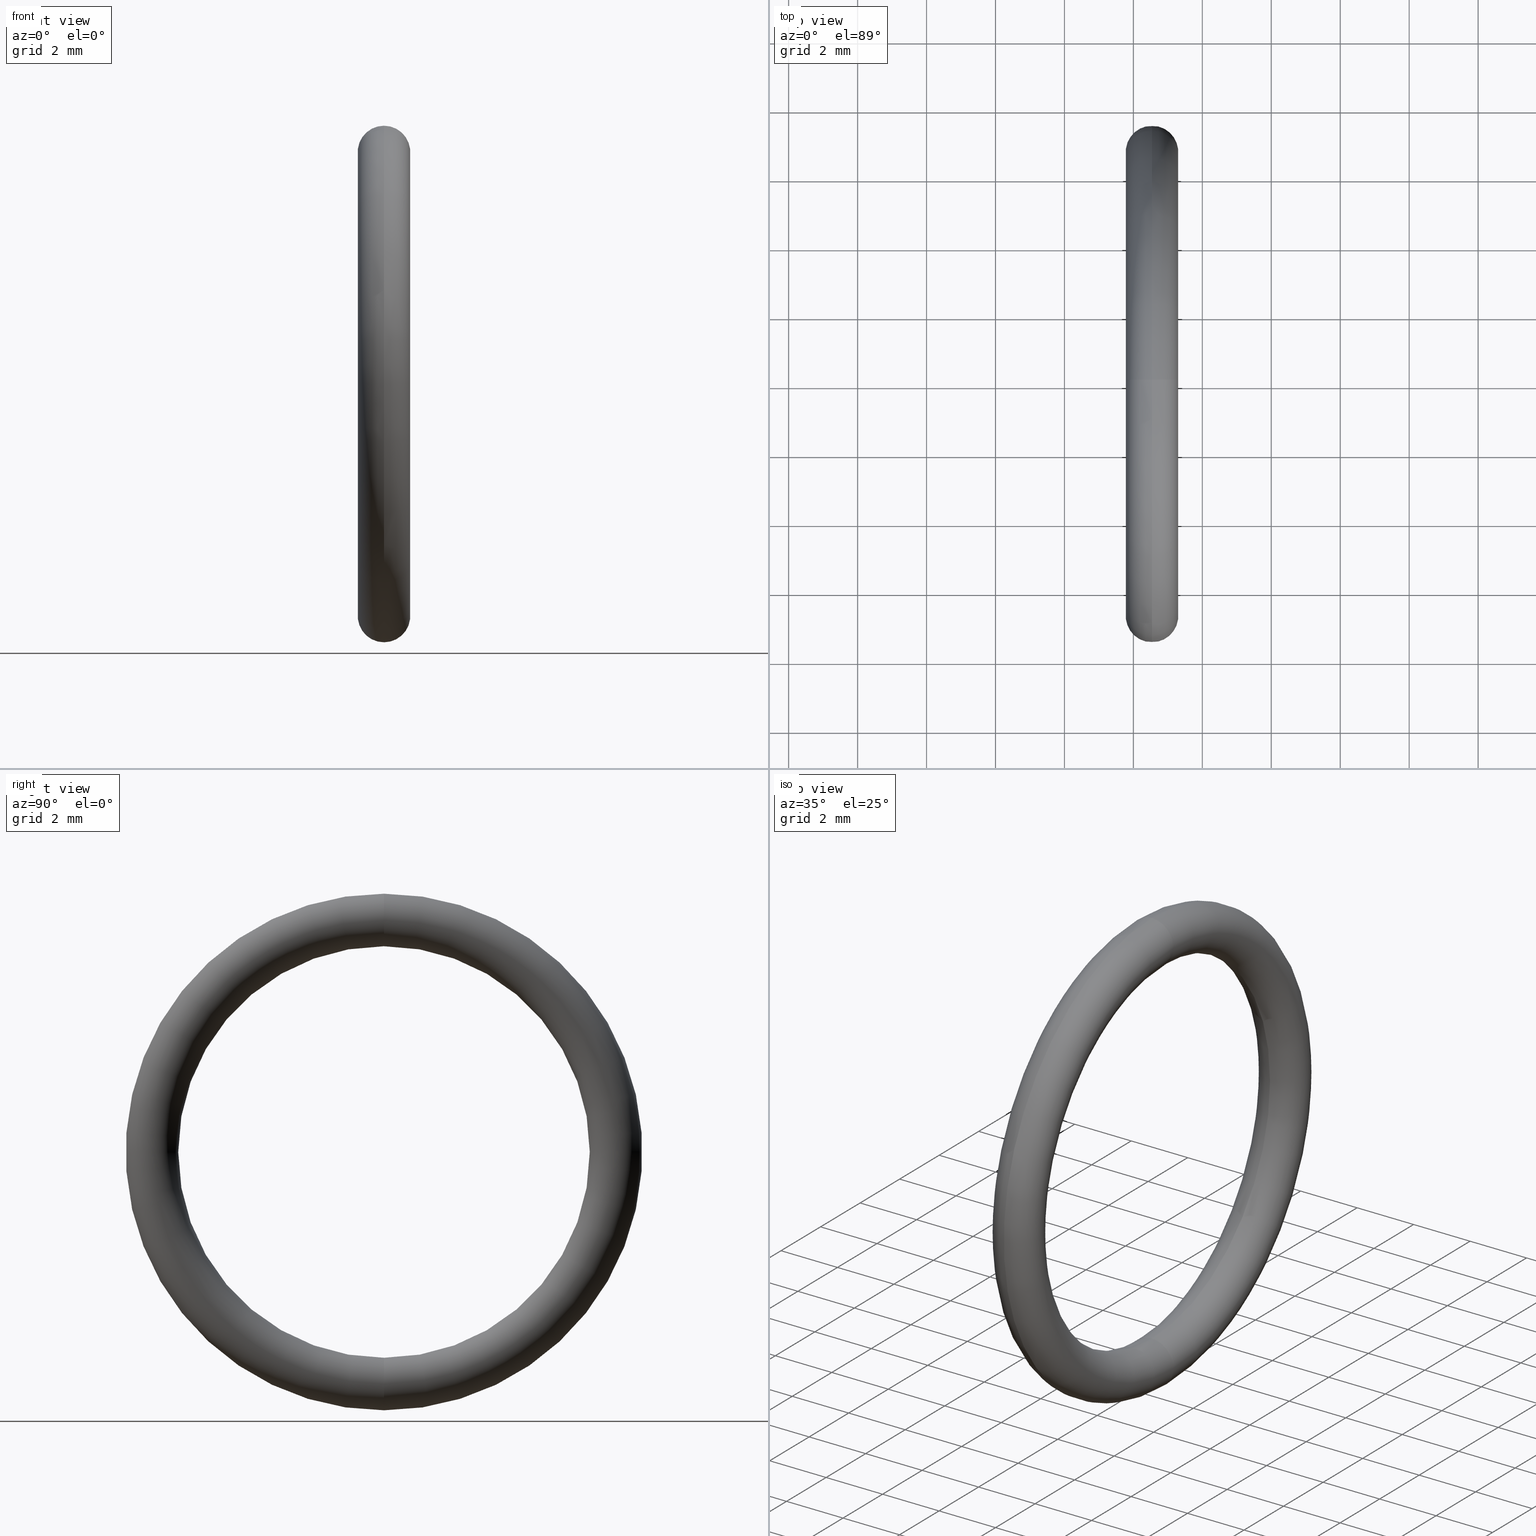
[diagram: canonical four-view strip — front | top / right | iso, engineering-drawing reading convention]
A machine part, canonical four-view strip (front | top / right | iso — engineering-drawing reading convention). The complete STEP part file that produces these views, byte-faithful:
ISO-10303-21;
HEADER;
FILE_DESCRIPTION (( 'STEP AP203' ),
    '1' );
FILE_NAME ('OM-16-SI.STEP',
    '2006-03-03T07:55:46',
    ( 'bay06' ),
    ( '' ),
    'SwSTEP 2.0',
    'SolidWorks 2008',
    '' );
FILE_SCHEMA (( 'CONFIG_CONTROL_DESIGN' ));
ENDSEC;

DATA;
#1 = DIRECTION ( 'NONE',  ( 0.0000000000000000000, 0.0000000000000000000, 1.000000000000000000 ) ) ;
#2 = DIRECTION ( 'NONE',  ( -0.0000000000000000000, 1.000000000000000000, 1.224646799147353200E-016 ) ) ;
#3 = CARTESIAN_POINT ( 'NONE',  ( 0.1000000000000000500, 3.245314017740485600E-017, -0.2649999999999999600 ) ) ;
#4 = AXIS2_PLACEMENT_3D ( 'NONE', #3, #2, #11 ) ;
#5 = DIRECTION ( 'NONE',  ( -1.000000000000000000, -0.0000000000000000000, -0.0000000000000000000 ) ) ;
#6 = TOROIDAL_SURFACE ( 'NONE', #10, 0.2649999999999999600, 0.03000000000000000900 ) ;
#7 = DIRECTION ( 'NONE',  ( 0.0000000000000000000, 0.0000000000000000000, 1.000000000000000000 ) ) ;
#8 = FACE_OUTER_BOUND ( 'NONE', #25, .T. ) ;
#9 = CARTESIAN_POINT ( 'NONE',  ( 0.1000000000000000500, 0.0000000000000000000, 0.0000000000000000000 ) ) ;
#10 = AXIS2_PLACEMENT_3D ( 'NONE', #9, #5, #7 ) ;
#11 = DIRECTION ( 'NONE',  ( 0.0000000000000000000, -1.224646799147353500E-016, 1.000000000000000000 ) ) ;
#12 = CARTESIAN_POINT ( 'NONE',  ( 0.1000000000000000500, 0.0000000000000000000, 0.0000000000000000000 ) ) ;
#13 = DIRECTION ( 'NONE',  ( -1.000000000000000000, -0.0000000000000000000, -0.0000000000000000000 ) ) ;
#14 = DIRECTION ( 'NONE',  ( 0.0000000000000000000, 0.0000000000000000000, 1.000000000000000000 ) ) ;
#15 = AXIS2_PLACEMENT_3D ( 'NONE', #12, #13, #14 ) ;
#16 = CIRCLE ( 'NONE', #15, 0.2349999999999999600 ) ;
#17 = CIRCLE ( 'NONE', #4, 0.03000000000000002300 ) ;
#18 = AXIS2_PLACEMENT_3D ( 'NONE', #20, #21, #1 ) ;
#19 = CIRCLE ( 'NONE', #18, 0.2949999999999999800 ) ;
#20 = CARTESIAN_POINT ( 'NONE',  ( 0.1000000000000000500, 0.0000000000000000000, 0.0000000000000000000 ) ) ;
#21 = DIRECTION ( 'NONE',  ( -1.000000000000000000, -0.0000000000000000000, -0.0000000000000000000 ) ) ;
#22 = EDGE_LOOP ( 'NONE', ( #27, #34, #32, #29 ) ) ;
#23 = ADVANCED_FACE ( 'NONE', ( #8 ), #6, .T. ) ;
#24 = EDGE_CURVE ( 'NONE', #36, #35, #16, .T. ) ;
#25 = EDGE_LOOP ( 'NONE', ( #41, #42, #53, #54 ) ) ;
#26 = EDGE_CURVE ( 'NONE', #33, #31, #19, .T. ) ;
#27 = ORIENTED_EDGE ( 'NONE', *, *, #28, .F. ) ;
#28 = EDGE_CURVE ( 'NONE', #33, #36, #17, .T. ) ;
#29 = ORIENTED_EDGE ( 'NONE', *, *, #24, .F. ) ;
#30 = EDGE_CURVE ( 'NONE', #31, #35, #66, .T. ) ;
#31 = VERTEX_POINT ( 'NONE', #68 ) ;
#32 = ORIENTED_EDGE ( 'NONE', *, *, #30, .T. ) ;
#33 = VERTEX_POINT ( 'NONE', #67 ) ;
#34 = ORIENTED_EDGE ( 'NONE', *, *, #26, .T. ) ;
#35 = VERTEX_POINT ( 'NONE', #76 ) ;
#36 = VERTEX_POINT ( 'NONE', #82 ) ;
#37 = EDGE_CURVE ( 'NONE', #35, #31, #80, .T. ) ;
#38 = ORIENTED_EDGE ( 'NONE', *, *, #50, .T. ) ;
#39 = MANIFOLD_SOLID_BREP ( 'NONE', #57 ) ;
#40 = ADVANCED_FACE ( 'NONE', ( #81 ), #84, .T. ) ;
#41 = ORIENTED_EDGE ( 'NONE', *, *, #30, .F. ) ;
#42 = ORIENTED_EDGE ( 'NONE', *, *, #43, .T. ) ;
#43 = EDGE_CURVE ( 'NONE', #31, #33, #62, .T. ) ;
#44 = ORIENTED_EDGE ( 'NONE', *, *, #46, .F. ) ;
#45 = ORIENTED_EDGE ( 'NONE', *, *, #26, .F. ) ;
#46 = EDGE_CURVE ( 'NONE', #36, #33, #71, .T. ) ;
#47 = ORIENTED_EDGE ( 'NONE', *, *, #43, .F. ) ;
#48 = ORIENTED_EDGE ( 'NONE', *, *, #37, .F. ) ;
#49 = ORIENTED_EDGE ( 'NONE', *, *, #24, .T. ) ;
#50 = EDGE_CURVE ( 'NONE', #35, #36, #93, .T. ) ;
#51 = ADVANCED_FACE ( 'NONE', ( #97 ), #101, .T. ) ;
#52 = ORIENTED_EDGE ( 'NONE', *, *, #37, .T. ) ;
#53 = ORIENTED_EDGE ( 'NONE', *, *, #28, .T. ) ;
#54 = ORIENTED_EDGE ( 'NONE', *, *, #50, .F. ) ;
#55 = ADVANCED_FACE ( 'NONE', ( #116 ), #110, .T. ) ;
#56 = EDGE_LOOP ( 'NONE', ( #45, #44, #49, #52 ) ) ;
#57 = CLOSED_SHELL ( 'NONE', ( #40, #23, #51, #55 ) ) ;
#58 = EDGE_LOOP ( 'NONE', ( #47, #48, #38, #59 ) ) ;
#59 = ORIENTED_EDGE ( 'NONE', *, *, #46, .T. ) ;
#60 = CARTESIAN_POINT ( 'NONE',  ( 0.1000000000000000500, 0.0000000000000000000, 0.2649999999999999600 ) ) ;
#61 = AXIS2_PLACEMENT_3D ( 'NONE', #74, #73, #72 ) ;
#62 = CIRCLE ( 'NONE', #61, 0.2949999999999999800 ) ;
#63 = DIRECTION ( 'NONE',  ( 0.0000000000000000000, 0.0000000000000000000, 1.000000000000000000 ) ) ;
#64 = DIRECTION ( 'NONE',  ( -1.000000000000000000, -0.0000000000000000000, -0.0000000000000000000 ) ) ;
#65 = CARTESIAN_POINT ( 'NONE',  ( 0.1000000000000000500, 0.0000000000000000000, 0.0000000000000000000 ) ) ;
#66 = CIRCLE ( 'NONE', #75, 0.03000000000000002300 ) ;
#67 = CARTESIAN_POINT ( 'NONE',  ( 0.1000000000000000500, 3.612708057484692000E-017, -0.2949999999999999800 ) ) ;
#68 = CARTESIAN_POINT ( 'NONE',  ( 0.1000000000000000500, 0.0000000000000000000, 0.2949999999999999800 ) ) ;
#69 = DIRECTION ( 'NONE',  ( 0.0000000000000000000, -1.000000000000000000, 0.0000000000000000000 ) ) ;
#70 = AXIS2_PLACEMENT_3D ( 'NONE', #87, #88, #90 ) ;
#71 = CIRCLE ( 'NONE', #70, 0.03000000000000002300 ) ;
#72 = DIRECTION ( 'NONE',  ( 0.0000000000000000000, 0.0000000000000000000, 1.000000000000000000 ) ) ;
#73 = DIRECTION ( 'NONE',  ( -1.000000000000000000, -0.0000000000000000000, -0.0000000000000000000 ) ) ;
#74 = CARTESIAN_POINT ( 'NONE',  ( 0.1000000000000000500, 0.0000000000000000000, 0.0000000000000000000 ) ) ;
#75 = AXIS2_PLACEMENT_3D ( 'NONE', #60, #69, #77 ) ;
#76 = CARTESIAN_POINT ( 'NONE',  ( 0.1000000000000000500, 0.0000000000000000000, 0.2349999999999999600 ) ) ;
#77 = DIRECTION ( 'NONE',  ( 0.0000000000000000000, 0.0000000000000000000, -1.000000000000000000 ) ) ;
#78 = CARTESIAN_POINT ( 'NONE',  ( 0.1000000000000000500, 0.0000000000000000000, 0.2649999999999999600 ) ) ;
#79 = AXIS2_PLACEMENT_3D ( 'NONE', #78, #86, #85 ) ;
#80 = CIRCLE ( 'NONE', #79, 0.03000000000000002300 ) ;
#81 = FACE_OUTER_BOUND ( 'NONE', #22, .T. ) ;
#82 = CARTESIAN_POINT ( 'NONE',  ( 0.1000000000000000500, 2.877919977996279200E-017, -0.2349999999999999600 ) ) ;
#83 = AXIS2_PLACEMENT_3D ( 'NONE', #65, #64, #63 ) ;
#84 = TOROIDAL_SURFACE ( 'NONE', #83, 0.2649999999999999600, 0.03000000000000000900 ) ;
#85 = DIRECTION ( 'NONE',  ( 0.0000000000000000000, 0.0000000000000000000, -1.000000000000000000 ) ) ;
#86 = DIRECTION ( 'NONE',  ( 0.0000000000000000000, -1.000000000000000000, 0.0000000000000000000 ) ) ;
#87 = CARTESIAN_POINT ( 'NONE',  ( 0.1000000000000000500, 3.245314017740485600E-017, -0.2649999999999999600 ) ) ;
#88 = DIRECTION ( 'NONE',  ( -0.0000000000000000000, 1.000000000000000000, 1.224646799147353200E-016 ) ) ;
#89 =( GEOMETRIC_REPRESENTATION_CONTEXT ( 3 ) GLOBAL_UNCERTAINTY_ASSIGNED_CONTEXT ( ( #104 ) ) GLOBAL_UNIT_ASSIGNED_CONTEXT ( ( #107, #106, #105 ) ) REPRESENTATION_CONTEXT ( 'NONE', 'WORKASPACE' ) );
#90 = DIRECTION ( 'NONE',  ( 0.0000000000000000000, -1.224646799147353500E-016, 1.000000000000000000 ) ) ;
#91 = ADVANCED_BREP_SHAPE_REPRESENTATION ( 'OM-16-SI', ( #39, #124 ), #89 ) ;
#92 = AXIS2_PLACEMENT_3D ( 'NONE', #96, #95, #94 ) ;
#93 = CIRCLE ( 'NONE', #92, 0.2349999999999999600 ) ;
#94 = DIRECTION ( 'NONE',  ( 0.0000000000000000000, 0.0000000000000000000, 1.000000000000000000 ) ) ;
#95 = DIRECTION ( 'NONE',  ( -1.000000000000000000, -0.0000000000000000000, -0.0000000000000000000 ) ) ;
#96 = CARTESIAN_POINT ( 'NONE',  ( 0.1000000000000000500, 0.0000000000000000000, 0.0000000000000000000 ) ) ;
#97 = FACE_OUTER_BOUND ( 'NONE', #58, .T. ) ;
#98 = AXIS2_PLACEMENT_3D ( 'NONE', #103, #99, #102 ) ;
#99 = DIRECTION ( 'NONE',  ( -1.000000000000000000, -0.0000000000000000000, -0.0000000000000000000 ) ) ;
#100 = CC_DESIGN_PERSON_AND_ORGANIZATION_ASSIGNMENT ( #118, #117, ( #122 ) ) ;
#101 = TOROIDAL_SURFACE ( 'NONE', #98, 0.2649999999999999600, 0.03000000000000000900 ) ;
#102 = DIRECTION ( 'NONE',  ( 0.0000000000000000000, 0.0000000000000000000, 1.000000000000000000 ) ) ;
#103 = CARTESIAN_POINT ( 'NONE',  ( 0.1000000000000000500, 0.0000000000000000000, 0.0000000000000000000 ) ) ;
#104 = UNCERTAINTY_MEASURE_WITH_UNIT (LENGTH_MEASURE( 1.000000000000000100E-005 ), #107, 'distance_accuracy_value', 'NONE');
#105 =( NAMED_UNIT ( * ) SI_UNIT ( $, .STERADIAN. ) SOLID_ANGLE_UNIT ( ) );
#106 =( NAMED_UNIT ( * ) PLANE_ANGLE_UNIT ( ) SI_UNIT ( $, .RADIAN. ) );
#107 =( CONVERSION_BASED_UNIT ( 'INCH', #113 ) LENGTH_UNIT ( ) NAMED_UNIT ( #114 ) );
#108 = AXIS2_PLACEMENT_3D ( 'NONE', #112, #111, #109 ) ;
#109 = DIRECTION ( 'NONE',  ( 0.0000000000000000000, 0.0000000000000000000, 1.000000000000000000 ) ) ;
#110 = TOROIDAL_SURFACE ( 'NONE', #108, 0.2649999999999999600, 0.03000000000000000900 ) ;
#111 = DIRECTION ( 'NONE',  ( -1.000000000000000000, -0.0000000000000000000, -0.0000000000000000000 ) ) ;
#112 = CARTESIAN_POINT ( 'NONE',  ( 0.1000000000000000500, 0.0000000000000000000, 0.0000000000000000000 ) ) ;
#113 = LENGTH_MEASURE_WITH_UNIT ( LENGTH_MEASURE( 0.02539999999999999900 ), #115 );
#114 = DIMENSIONAL_EXPONENTS ( 1.000000000000000000, 0.0000000000000000000, 0.0000000000000000000, 0.0000000000000000000, 0.0000000000000000000, 0.0000000000000000000, 0.0000000000000000000 ) ;
#115 =( LENGTH_UNIT ( ) NAMED_UNIT ( * ) SI_UNIT ( $, .METRE. ) );
#116 = FACE_OUTER_BOUND ( 'NONE', #56, .T. ) ;
#117 = PERSON_AND_ORGANIZATION_ROLE ( 'design_owner' ) ;
#118 = PERSON_AND_ORGANIZATION ( #128, #127 ) ;
#119 = DIRECTION ( 'NONE',  ( 0.0000000000000000000, 0.0000000000000000000, 1.000000000000000000 ) ) ;
#120 = DIRECTION ( 'NONE',  ( 1.000000000000000000, 0.0000000000000000000, 0.0000000000000000000 ) ) ;
#121 = CARTESIAN_POINT ( 'NONE',  ( 0.0000000000000000000, 0.0000000000000000000, 0.0000000000000000000 ) ) ;
#122 = PRODUCT ( 'OM-16-SI', 'OM-16-SI', '', ( #123 ) ) ;
#123 = MECHANICAL_CONTEXT ( 'NONE', #126, 'mechanical' ) ;
#124 = AXIS2_PLACEMENT_3D ( 'NONE', #121, #119, #120 ) ;
#125 = APPLICATION_PROTOCOL_DEFINITION ( 'international standard', 'config_control_design', 1994, #126 ) ;
#126 = APPLICATION_CONTEXT ( 'configuration controlled 3d designs of mechanical parts and assemblies' ) ;
#127 = ORGANIZATION ( 'UNSPECIFIED', 'UNSPECIFIED', '' ) ;
#128 = PERSON ( 'UNSPECIFIED', 'UNSPECIFIED', 'UNSPECIFIED', ('UNSPECIFIED'), ('UNSPECIFIED'), ('UNSPECIFIED') ) ;
#129 = APPLICATION_CONTEXT ( 'configuration controlled 3d designs of mechanical parts and assemblies' ) ;
#130 = APPROVAL_PERSON_ORGANIZATION ( #143, #134, #176 ) ;
#131 = CC_DESIGN_APPROVAL ( #134, ( #164 ) ) ;
#132 = DATE_AND_TIME ( #133, #140 ) ;
#133 = CALENDAR_DATE ( 2006, 3, 3 ) ;
#134 = APPROVAL ( #179, 'UNSPECIFIED' ) ;
#135 = LOCAL_TIME ( 13, 25, 46.00000000000000000, #139 ) ;
#136 = CC_DESIGN_APPROVAL ( #193, ( #151 ) ) ;
#137 = APPROVAL_DATE_TIME ( #138, #193 ) ;
#138 = DATE_AND_TIME ( #161, #162 ) ;
#139 = COORDINATED_UNIVERSAL_TIME_OFFSET ( 5, 30, .AHEAD. ) ;
#140 = LOCAL_TIME ( 13, 25, 46.00000000000000000, #141 ) ;
#141 = COORDINATED_UNIVERSAL_TIME_OFFSET ( 5, 30, .AHEAD. ) ;
#142 = DESIGN_CONTEXT ( 'detailed design', #129, 'design' ) ;
#143 = PERSON_AND_ORGANIZATION ( #128, #127 ) ;
#144 = CC_DESIGN_PERSON_AND_ORGANIZATION_ASSIGNMENT ( #146, #145, ( #156 ) ) ;
#145 = PERSON_AND_ORGANIZATION_ROLE ( 'classification_officer' ) ;
#146 = PERSON_AND_ORGANIZATION ( #128, #127 ) ;
#147 = CC_DESIGN_PERSON_AND_ORGANIZATION_ASSIGNMENT ( #165, #148, ( #151 ) ) ;
#148 = PERSON_AND_ORGANIZATION_ROLE ( 'creator' ) ;
#149 = APPROVAL_STATUS ( 'not_yet_approved' ) ;
#150 = PERSON_AND_ORGANIZATION ( #128, #127 ) ;
#151 = PRODUCT_DEFINITION_FORMATION_WITH_SPECIFIED_SOURCE ( 'ANY', '', #122, .NOT_KNOWN. ) ;
#152 = APPLICATION_PROTOCOL_DEFINITION ( 'international standard', 'config_control_design', 1994, #129 ) ;
#153 = SHAPE_DEFINITION_REPRESENTATION ( #154, #91 ) ;
#154 = PRODUCT_DEFINITION_SHAPE ( 'NONE', 'NONE',  #164 ) ;
#155 = PRODUCT_RELATED_PRODUCT_CATEGORY ( 'detail', '', ( #122 ) ) ;
#156 = SECURITY_CLASSIFICATION ( '', '', #157 ) ;
#157 = SECURITY_CLASSIFICATION_LEVEL ( 'unclassified' ) ;
#158 = CC_DESIGN_PERSON_AND_ORGANIZATION_ASSIGNMENT ( #160, #159, ( #151 ) ) ;
#159 = PERSON_AND_ORGANIZATION_ROLE ( 'design_supplier' ) ;
#160 = PERSON_AND_ORGANIZATION ( #128, #127 ) ;
#161 = CALENDAR_DATE ( 2006, 3, 3 ) ;
#162 = LOCAL_TIME ( 13, 25, 46.00000000000000000, #163 ) ;
#163 = COORDINATED_UNIVERSAL_TIME_OFFSET ( 5, 30, .AHEAD. ) ;
#164 = PRODUCT_DEFINITION ( 'UNKNOWN', '', #151, #142 ) ;
#165 = PERSON_AND_ORGANIZATION ( #128, #127 ) ;
#166 = CALENDAR_DATE ( 2006, 3, 3 ) ;
#167 = APPROVAL_DATE_TIME ( #168, #174 ) ;
#168 = DATE_AND_TIME ( #169, #170 ) ;
#169 = CALENDAR_DATE ( 2006, 3, 3 ) ;
#170 = LOCAL_TIME ( 13, 25, 46.00000000000000000, #171 ) ;
#171 = COORDINATED_UNIVERSAL_TIME_OFFSET ( 5, 30, .AHEAD. ) ;
#172 = APPROVAL_PERSON_ORGANIZATION ( #184, #174, #173 ) ;
#173 = APPROVAL_ROLE ( '' ) ;
#174 = APPROVAL ( #175, 'UNSPECIFIED' ) ;
#175 = APPROVAL_STATUS ( 'not_yet_approved' ) ;
#176 = APPROVAL_ROLE ( '' ) ;
#177 = CC_DESIGN_SECURITY_CLASSIFICATION ( #156, ( #151 ) ) ;
#178 = CC_DESIGN_APPROVAL ( #174, ( #156 ) ) ;
#179 = APPROVAL_STATUS ( 'not_yet_approved' ) ;
#180 = CC_DESIGN_DATE_AND_TIME_ASSIGNMENT ( #132, #181, ( #164 ) ) ;
#181 = DATE_TIME_ROLE ( 'creation_date' ) ;
#182 = PERSON_AND_ORGANIZATION_ROLE ( 'creator' ) ;
#183 = PERSON_AND_ORGANIZATION ( #128, #127 ) ;
#184 = PERSON_AND_ORGANIZATION ( #128, #127 ) ;
#185 = CC_DESIGN_DATE_AND_TIME_ASSIGNMENT ( #187, #186, ( #156 ) ) ;
#186 = DATE_TIME_ROLE ( 'classification_date' ) ;
#187 = DATE_AND_TIME ( #188, #189 ) ;
#188 = CALENDAR_DATE ( 2006, 3, 3 ) ;
#189 = LOCAL_TIME ( 13, 25, 46.00000000000000000, #190 ) ;
#190 = COORDINATED_UNIVERSAL_TIME_OFFSET ( 5, 30, .AHEAD. ) ;
#191 = APPROVAL_PERSON_ORGANIZATION ( #150, #193, #192 ) ;
#192 = APPROVAL_ROLE ( '' ) ;
#193 = APPROVAL ( #149, 'UNSPECIFIED' ) ;
#194 = APPROVAL_DATE_TIME ( #195, #134 ) ;
#195 = DATE_AND_TIME ( #166, #135 ) ;
#196 = CC_DESIGN_PERSON_AND_ORGANIZATION_ASSIGNMENT ( #183, #182, ( #164 ) ) ;
ENDSEC;
END-ISO-10303-21;
